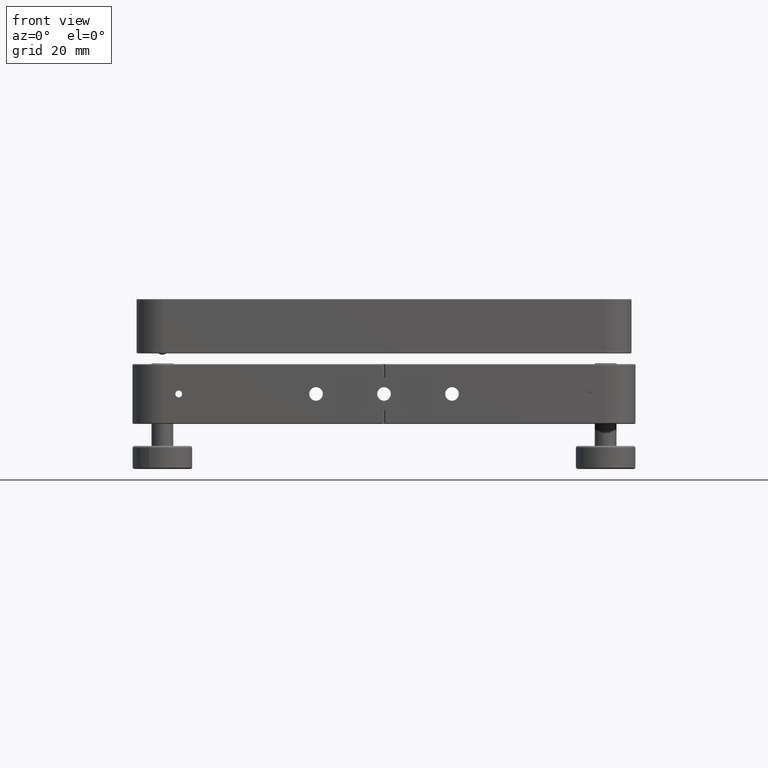
[diagram: clean part render]
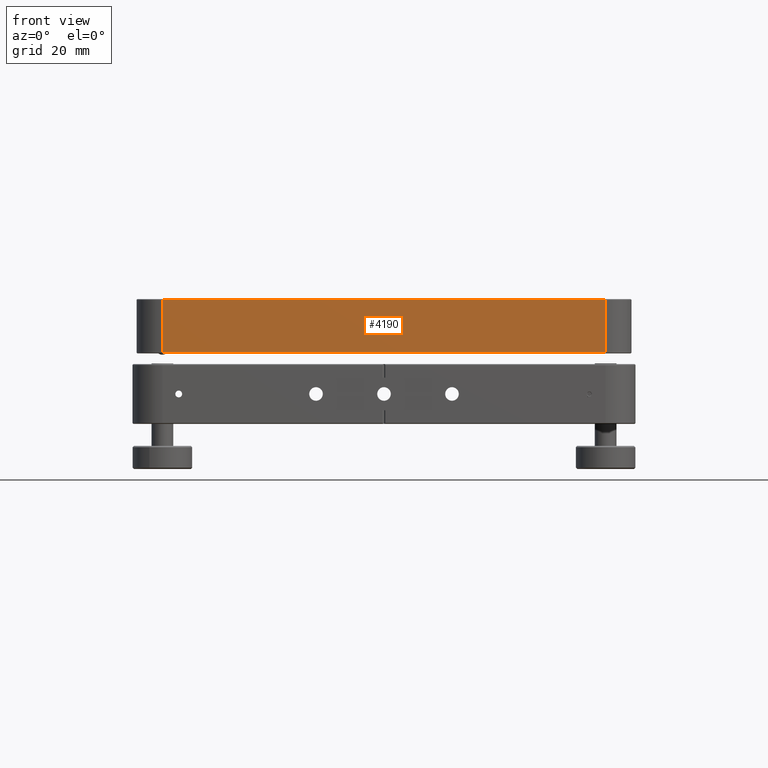
[diagram: same view with one face highlighted and labeled with its STEP entity id]
A machine part, front view. The second image highlights one B-rep face of the part: STEP entity #4190.
In plain terms, the highlighted planar face has unit normal (-0, 1, 0).
Its self-contained STEP definition (entity closure, byte-faithful):
#5 = CARTESIAN_POINT ( 'NONE',  ( -91.00000000000038369, -91.00000000000046896, 15.16318352574926642 ) ) ;
#521 = LINE ( 'NONE', #8036, #16698 ) ;
#1350 = VERTEX_POINT ( 'NONE', #12079 ) ;
#2153 = VECTOR ( 'NONE', #13036, 1000.000000000000000 ) ;
#2523 = DIRECTION ( 'NONE',  ( -1.000000000000000000, -6.383782391594643205E-16, 1.460576560598807035E-21 ) ) ;
#3148 = EDGE_CURVE ( 'NONE', #17767, #14044, #5483, .T. ) ;
#3818 = VECTOR ( 'NONE', #18077, 1000.000000000000000 ) ;
#4023 = PLANE ( 'NONE',  #15083 ) ;
#4190 = ADVANCED_FACE ( 'NONE', ( #9767 ), #4023, .F. ) ;
#4644 = VECTOR ( 'NONE', #2523, 1000.000000000000000 ) ;
#5013 = EDGE_CURVE ( 'NONE', #12586, #17767, #521, .T. ) ;
#5443 = ORIENTED_EDGE ( 'NONE', *, *, #7940, .T. ) ;
#5483 = LINE ( 'NONE', #13455, #4644 ) ;
#7940 = EDGE_CURVE ( 'NONE', #14044, #1350, #9781, .T. ) ;
#8036 = CARTESIAN_POINT ( 'NONE',  ( 81.50000000000041211, -91.00000000000035527, 34.91318352574927530 ) ) ;
#8296 = CARTESIAN_POINT ( 'NONE',  ( -81.50000000000041211, -91.00000000000046896, 34.91318352574927530 ) ) ;
#8909 = ORIENTED_EDGE ( 'NONE', *, *, #5013, .T. ) ;
#9718 = DIRECTION ( 'NONE',  ( 1.460576560598801204E-21, -3.273491101935708560E-36, 1.000000000000000000 ) ) ;
#9767 = FACE_OUTER_BOUND ( 'NONE', #11142, .T. ) ;
#9781 = LINE ( 'NONE', #8296, #2153 ) ;
#10673 = CARTESIAN_POINT ( 'NONE',  ( 81.50000000000041211, -91.00000000000035527, 34.66318352574926109 ) ) ;
#11142 = EDGE_LOOP ( 'NONE', ( #5443, #13640, #8909, #12976 ) ) ;
#11252 = CARTESIAN_POINT ( 'NONE',  ( 81.50000000000041211, -91.00000000000035527, 15.16318352574926642 ) ) ;
#11437 = CARTESIAN_POINT ( 'NONE',  ( -91.00000000000038369, -91.00000000000046896, 34.91318352574927530 ) ) ;
#12052 = EDGE_CURVE ( 'NONE', #1350, #12586, #17978, .T. ) ;
#12079 = CARTESIAN_POINT ( 'NONE',  ( -81.50000000000041211, -91.00000000000046896, 15.16318352574926642 ) ) ;
#12586 = VERTEX_POINT ( 'NONE', #11252 ) ;
#12976 = ORIENTED_EDGE ( 'NONE', *, *, #3148, .T. ) ;
#13036 = DIRECTION ( 'NONE',  ( -1.460576560598801204E-21, 3.273491101935708560E-36, -1.000000000000000000 ) ) ;
#13455 = CARTESIAN_POINT ( 'NONE',  ( -81.50000000000041211, -91.00000000000046896, 34.66318352574926109 ) ) ;
#13640 = ORIENTED_EDGE ( 'NONE', *, *, #12052, .T. ) ;
#14044 = VERTEX_POINT ( 'NONE', #15175 ) ;
#14111 = DIRECTION ( 'NONE',  ( -1.460576560598801204E-21, 3.273491101935708560E-36, -1.000000000000000000 ) ) ;
#15083 = AXIS2_PLACEMENT_3D ( 'NONE', #11437, #17356, #14111 ) ;
#15175 = CARTESIAN_POINT ( 'NONE',  ( -81.50000000000041211, -91.00000000000046896, 34.66318352574926109 ) ) ;
#16698 = VECTOR ( 'NONE', #9718, 1000.000000000000000 ) ;
#17356 = DIRECTION ( 'NONE',  ( -6.383782391594643205E-16, 1.000000000000000000, 4.205891394848357835E-36 ) ) ;
#17767 = VERTEX_POINT ( 'NONE', #10673 ) ;
#17978 = LINE ( 'NONE', #5, #3818 ) ;
#18077 = DIRECTION ( 'NONE',  ( 1.000000000000000000, 6.383782391594643205E-16, -1.460576560598807035E-21 ) ) ;